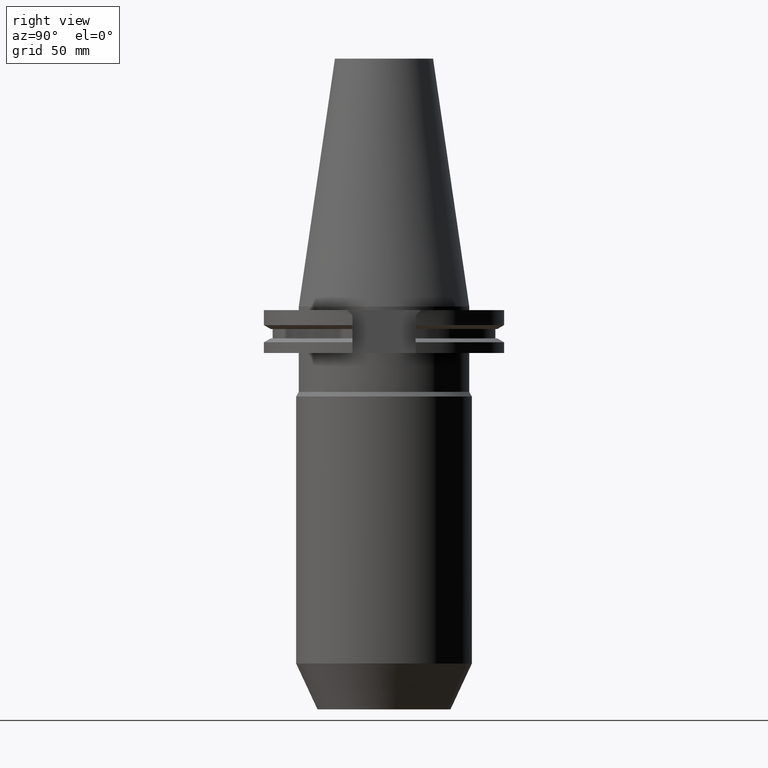
[diagram: clean part render]
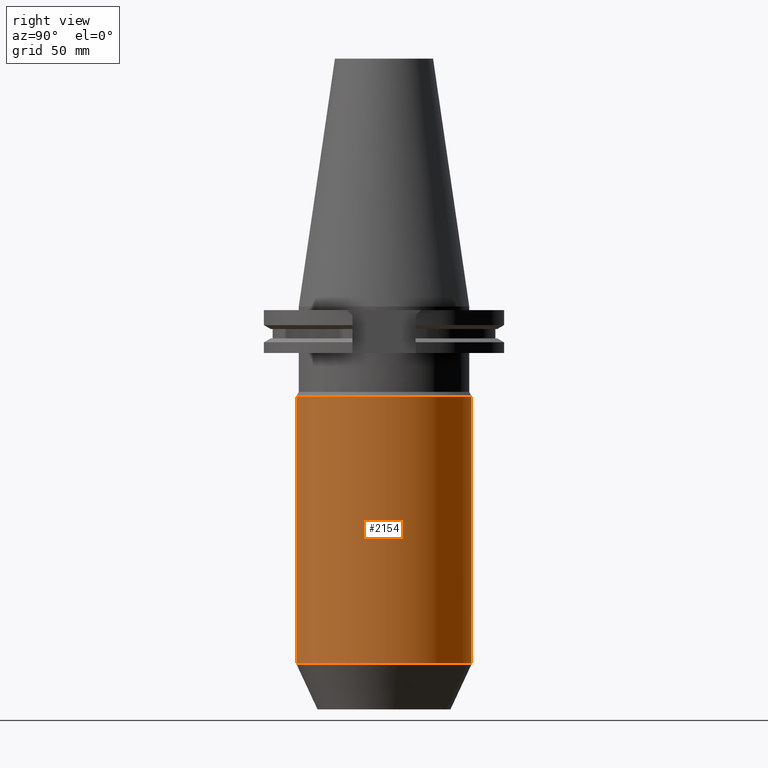
[diagram: same view with one face highlighted and labeled with its STEP entity id]
A machine part, right view. The second image highlights one B-rep face of the part: STEP entity #2154.
In plain terms, the highlighted cylindrical surface (partial cylindrical patch) has radius 36 mm, axis along (0, 0, 1).
Its self-contained STEP definition (entity closure, byte-faithful):
#869=CARTESIAN_POINT('',(0.E0,0.E0,-3.686195461814E1));
#870=DIRECTION('',(0.E0,0.E0,-1.E0));
#871=DIRECTION('',(0.E0,1.E0,0.E0));
#872=AXIS2_PLACEMENT_3D('',#869,#870,#871);
#908=DIRECTION('',(0.E0,3.260038714632E-14,-1.E0));
#909=VECTOR('',#908,1.094135636337E2);
#910=CARTESIAN_POINT('',(0.E0,-3.6E1,-3.686195461814E1));
#911=LINE('',#910,#909);
#915=DIRECTION('',(0.E0,-3.260038714632E-14,-1.E0));
#916=VECTOR('',#915,1.094135636337E2);
#917=CARTESIAN_POINT('',(0.E0,3.6E1,-3.686195461814E1));
#918=LINE('',#917,#916);
#929=CARTESIAN_POINT('',(0.E0,0.E0,-1.462755182518E2));
#930=DIRECTION('',(0.E0,0.E0,1.E0));
#931=DIRECTION('',(0.E0,-1.E0,0.E0));
#932=AXIS2_PLACEMENT_3D('',#929,#930,#931);
#1326=CARTESIAN_POINT('',(0.E0,3.6E1,-3.686195461814E1));
#1327=VERTEX_POINT('',#1326);
#1328=CARTESIAN_POINT('',(0.E0,-3.6E1,-3.686195461814E1));
#1329=VERTEX_POINT('',#1328);
#1330=CARTESIAN_POINT('',(0.E0,3.6E1,-1.462755182518E2));
#1331=VERTEX_POINT('',#1330);
#1332=CARTESIAN_POINT('',(0.E0,-3.6E1,-1.462755182518E2));
#1333=VERTEX_POINT('',#1332);
#2142=CARTESIAN_POINT('',(0.E0,0.E0,-1.78435E2));
#2143=DIRECTION('',(0.E0,0.E0,1.E0));
#2144=DIRECTION('',(0.E0,1.E0,0.E0));
#2145=AXIS2_PLACEMENT_3D('',#2142,#2143,#2144);
#2146=CYLINDRICAL_SURFACE('',#2145,3.6E1);
#2147=ORIENTED_EDGE('',*,*,#2132,.T.);
#2149=ORIENTED_EDGE('',*,*,#2148,.F.);
#2150=ORIENTED_EDGE('',*,*,#2135,.F.);
#2151=ORIENTED_EDGE('',*,*,#2106,.F.);
#2152=EDGE_LOOP('',(#2147,#2149,#2150,#2151));
#2153=FACE_OUTER_BOUND('',#2152,.F.);
#873=CIRCLE('',#872,3.6E1);
#933=CIRCLE('',#932,3.599999999999E1);
#2106=EDGE_CURVE('',#1327,#1329,#873,.T.);
#2132=EDGE_CURVE('',#1327,#1331,#918,.T.);
#2135=EDGE_CURVE('',#1329,#1333,#911,.T.);
#2148=EDGE_CURVE('',#1333,#1331,#933,.T.);
#2154=ADVANCED_FACE('',(#2153),#2146,.T.);